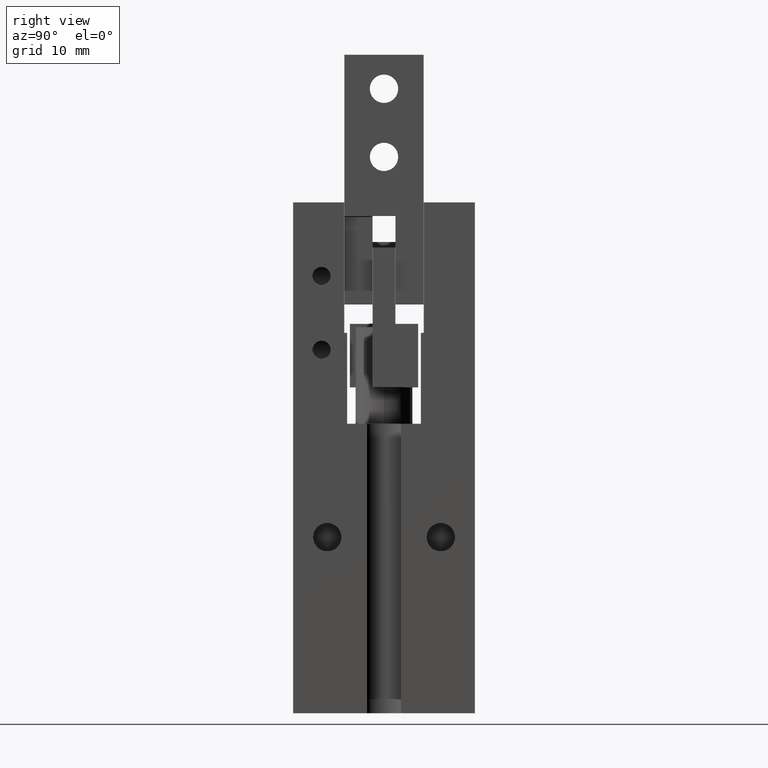
[diagram: clean part render]
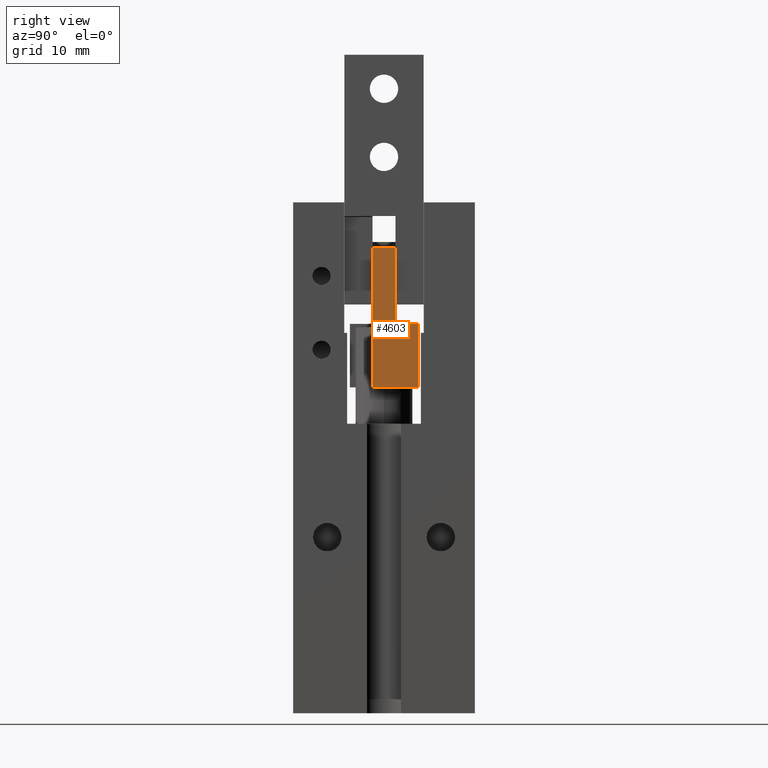
[diagram: same view with one face highlighted and labeled with its STEP entity id]
A machine part, right view. The second image highlights one B-rep face of the part: STEP entity #4603.
In plain terms, the highlighted planar face has unit normal (1, -0, 0).
Its self-contained STEP definition (entity closure, byte-faithful):
#4131=CARTESIAN_POINT('',(11.5,2.99999999999996,34.3));
#4132=VERTEX_POINT('Vertex186',#4131);
#4139=CARTESIAN_POINT('',(11.5,2.99999999999996,28.7));
#4140=VERTEX_POINT('Vertex187',#4139);
#4141=CARTESIAN_POINT('',(11.5,2.99999999999996,31.5));
#4142=DIRECTION('',(3.17206578464331E-016,0.,-1.));
#4143=VECTOR('',#4142,1.);
#4144=LINE('nurbsCrv245',#4141,#4143);
#4145=EDGE_CURVE('Edge245',#4132,#4140,#4144,.T.);
#4323=CARTESIAN_POINT('',(11.5,0.999999999999963,34.3));
#4324=VERTEX_POINT('Vertex200',#4323);
#4339=CARTESIAN_POINT('',(11.5,0.999999999999962,41.));
#4340=VERTEX_POINT('Vertex203',#4339);
#4347=CARTESIAN_POINT('',(11.5,0.999999999999963,37.65));
#4348=DIRECTION('',(-5.30255772955298E-016,-8.28524645242654E-017,1.));
#4349=VECTOR('',#4348,1.);
#4350=LINE('nurbsCrv264',#4347,#4349);
#4351=EDGE_CURVE('Edge264',#4324,#4340,#4350,.T.);
#4448=CARTESIAN_POINT('',(11.5,1.99999999999996,34.3));
#4449=DIRECTION('',(-2.66453525910038E-015,-1.,0.));
#4450=VECTOR('',#4449,1.);
#4451=LINE('nurbsCrv271',#4448,#4450);
#4452=EDGE_CURVE('Edge271',#4132,#4324,#4451,.T.);
#4478=CARTESIAN_POINT('',(11.5,-1.00000000000004,41.));
#4479=VERTEX_POINT('Vertex207',#4478);
#4486=CARTESIAN_POINT('',(11.5,-3.7470027081099E-014,41.));
#4487=DIRECTION('',(2.66453525910038E-015,1.,0.));
#4488=VECTOR('',#4487,1.);
#4489=LINE('nurbsCrv275',#4486,#4488);
#4490=EDGE_CURVE('Edge275',#4479,#4340,#4489,.T.);
#4578=ORIENTED_EDGE('Edgeuse516',*,*,#4145,.F.);
#4579=ORIENTED_EDGE('Edgeuse517',*,*,#4452,.T.);
#4580=ORIENTED_EDGE('Edgeuse518',*,*,#4351,.T.);
#4581=ORIENTED_EDGE('Edgeuse519',*,*,#4490,.F.);
#4582=CARTESIAN_POINT('',(11.5,-1.00000000000004,28.7));
#4583=VERTEX_POINT('Vertex211',#4582);
#4584=CARTESIAN_POINT('',(11.5,-1.00000000000004,34.85));
#4585=DIRECTION('',(-1.44419255235793E-016,-3.61048138089482E-017,1.));
#4586=VECTOR('',#4585,1.);
#4587=LINE('nurbsCrv282',#4584,#4586);
#4588=EDGE_CURVE('Edge282',#4583,#4479,#4587,.T.);
#4589=ORIENTED_EDGE('Edgeuse520',*,*,#4588,.F.);
#4590=CARTESIAN_POINT('',(11.5,0.999999999999963,28.7));
#4591=DIRECTION('',(-3.5527136788005E-015,-1.,0.));
#4592=VECTOR('',#4591,1.);
#4593=LINE('nurbsCrv283',#4590,#4592);
#4594=EDGE_CURVE('Edge283',#4140,#4583,#4593,.T.);
#4595=ORIENTED_EDGE('Edgeuse521',*,*,#4594,.F.);
#4596=EDGE_LOOP('',(#4578,#4579,#4580,#4581,#4589,#4595));
#4597=FACE_OUTER_BOUND('',#4596,.T.);
#4598=CARTESIAN_POINT('',(11.5,0.999999999999963,34.85));
#4599=DIRECTION('',(1.,-3.22973970800042E-015,1.0918856848453E-029));
#4600=DIRECTION('',(-3.22973970800042E-015,-1.,3.22973970800042E-015));
#4601=AXIS2_PLACEMENT_3D('',#4598,#4599,#4600);
#4602=PLANE('nurbsSrf114',#4601);
#4603=ADVANCED_FACE('Face114',(#4597),#4602,.T.);